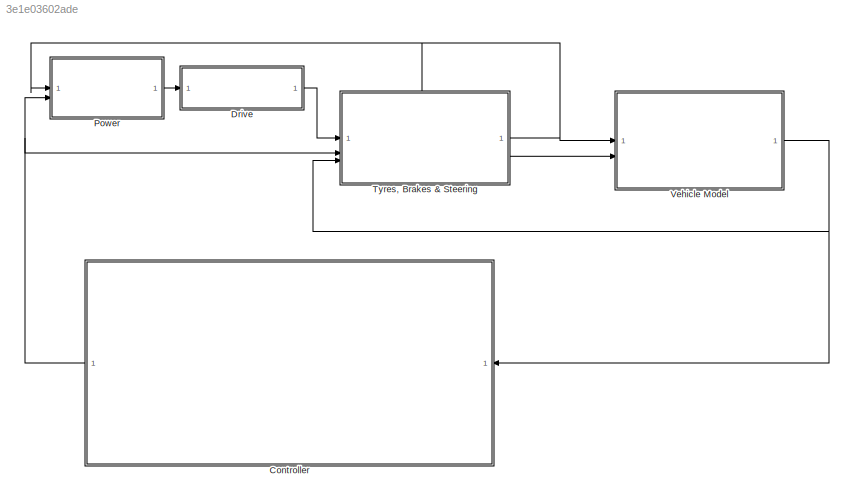
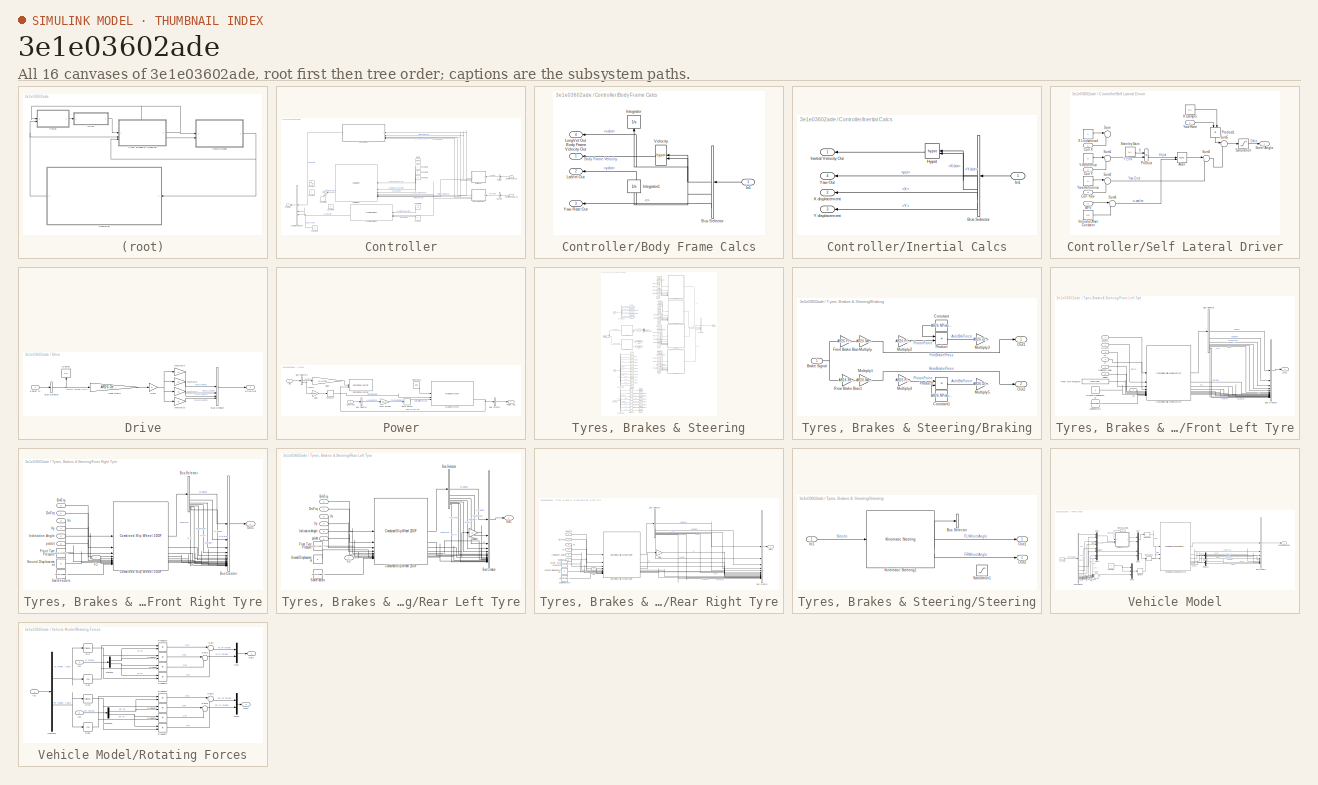
[diagram: thumbnail index - all 16 canvases of the model, root first then tree order]
MODEL slx_3e1e03602ade
KIND model
CONFIG AbsTol = auto
CONFIG EnableMultiTasking = off
CONFIG FixedStep = auto
CONFIG MaxStep = auto
CONFIG MinStep = auto
CONFIG RelTol = auto
CONFIG SampleTimeConstraint = Unconstrained
CONFIG SolverName = ode23t
CONFIG StartTime = 0.0
CONFIG StopTime = 100
BLOCK [SubSystem] Controller
BLOCK [BusSelector] Controller/BdyFrm
  NameLocation = top
  OutputSignals = Info.BdyFrm
BLOCK [SubSystem] Controller/Body Frame Calcs
  NameLocation = top
BLOCK [Outport] Controller/Body Frame Calcs/Body Frame Velocity Out
  NameLocation = top
BLOCK [BusSelector] Controller/Body Frame Calcs/Bus Selector
  NameLocation = top
  OutputSignals = Cg.Vel.xdot,Cg.Vel.ydot,FrntAxl.Steer.WhlAngFL,FrntAxl.Steer.WhlAngFR,Cg.Ang.Beta,Cg.AngVel.r,Cg.DCM
BLOCK [Inport] Controller/Body Frame Calcs/In1
  NameLocation = top
BLOCK [Integrator] Controller/Body Frame Calcs/Integrator
  NameLocation = right
BLOCK [Integrator] Controller/Body Frame Calcs/Integrator1
  NameLocation = left
BLOCK [Outport] Controller/Body Frame Calcs/LatVel Out
  Port = 2
BLOCK [Outport] Controller/Body Frame Calcs/LongVel Out
  NameLocation = top
  Port = 4
BLOCK [Math] Controller/Body Frame Calcs/Velocity
  NameLocation = top
  Operator = hypot
BLOCK [Outport] Controller/Body Frame Calcs/Yaw Rate Out
  NameLocation = top
  Port = 3
BLOCK [Constant] Controller/Constant
  NameLocation = top
  Value = 0
BLOCK [Constant] Controller/Constant1
  NameLocation = top
  Value = 0
BLOCK [Constant] Controller/Constant2
  NameLocation = top
  Value = 0
BLOCK [Constant] Controller/Constant3
  NameLocation = top
  Value = 0
BLOCK [Constant] Controller/Constant4
  NameLocation = top
  Value = 0
BLOCK [Constant] Controller/Constant5
  NameLocation = top
  Value = 0
BLOCK [Constant] Controller/Constant6
  NameLocation = top
  Value = 30
BLOCK [Constant] Controller/Constant7
  NameLocation = top
  Value = 0
BLOCK [BusCreator] Controller/Control Commands
  DisplayOption = bar
  InheritFromInputs = on
  Inputs = 3
  NameLocation = top
BLOCK [Inport] Controller/Control Feedback
BLOCK [InportShadow] Controller/Control Feedback2
BLOCK [Outport] Controller/Control Out
BLOCK [Gain] Controller/Gain
  Gain = pi/2
  NameLocation = top
BLOCK [BusSelector] Controller/InertFrm
  NameLocation = top
  OutputSignals = Info.InertFrm
BLOCK [SubSystem] Controller/Inertial Calcs
  NameLocation = top
BLOCK [BusSelector] Controller/Inertial Calcs/Bus Selector
  NameLocation = top
  OutputSignals = Cg.Vel.Xdot,Cg.Vel.Ydot,Cg.Ang.psi,Cg.Disp.X,Cg.Disp.Y
BLOCK [Math] Controller/Inertial Calcs/Hypot
  NameLocation = top
  Operator = hypot
BLOCK [Inport] Controller/Inertial Calcs/In1
  NameLocation = top
BLOCK [Outport] Controller/Inertial Calcs/Inertial Velocity Out
  NameLocation = top
BLOCK [Outport] Controller/Inertial Calcs/X displacement
  NameLocation = top
  Port = 2
BLOCK [Outport] Controller/Inertial Calcs/Y displacement
  NameLocation = top
  Port = 3
BLOCK [Outport] Controller/Inertial Calcs/Yaw Out
  NameLocation = top
  Port = 4
BLOCK [Reference] Controller/Lateral Driver  REF=vehdynlibdriver/Lateral Driver
  NameLocation = top
  SourceBlock = vehdynlibdriver/Lateral Driver
  SourceType = Lateral Driver
BLOCK [Reference] Controller/Longitudinal Driver  REF=autolibshared/Longitudinal Driver
  LibrarySourceBlock = vehdynlibdriver/Longitudinal Driver
  NameLocation = top
  SourceBlock = autolibshared/Longitudinal Driver
  SourceType = Longitudinal Driver
BLOCK [Reference] Controller/Ramp  REF=simulink/Sources/Ramp
  NameLocation = top
  SourceBlock = simulink/Sources/Ramp
  SourceType = Ramp
BLOCK [RateLimiter] Controller/Rate Limiter1
  NameLocation = top
  RisingSlewLimit = 0.5
  SampleTimeMode = inherited
BLOCK [SubSystem] Controller/Self Lateral Driver
  NameLocation = top
BLOCK [Trigonometry] Controller/Self Lateral Driver/Atan
  Operator = atan2
BLOCK [Inport] Controller/Self Lateral Driver/BFV
  NameLocation = left
  Port = 4
BLOCK [Inport] Controller/Self Lateral Driver/Curr X
  NameLocation = left
BLOCK [Inport] Controller/Self Lateral Driver/Curr Y
  NameLocation = left
  Port = 2
BLOCK [Inport] Controller/Self Lateral Driver/Curr Yaw
  NameLocation = left
  Port = 3
BLOCK [Constant] Controller/Self Lateral Driver/K Damper
  Value = 0.1
BLOCK [Product] Controller/Self Lateral Driver/Product
BLOCK [Product] Controller/Self Lateral Driver/Product1
  NameLocation = left
BLOCK [Saturate] Controller/Self Lateral Driver/Saturation
  LowerLimit = -1.6
  UpperLimit = 1.6
BLOCK [Constant] Controller/Self Lateral Driver/Stanley Gain
  NameLocation = left
  Value = 0.1
BLOCK [Outport] Controller/Self Lateral Driver/Steer Angle
BLOCK [Sum] Controller/Self Lateral Driver/Sum
  Inputs = |++
BLOCK [Sum] Controller/Self Lateral Driver/Sum1
  Inputs = |+-
BLOCK [Sum] Controller/Self Lateral Driver/Sum2
  Inputs = |+-
BLOCK [Sum] Controller/Self Lateral Driver/Sum3
  Inputs = |++
BLOCK [Sum] Controller/Self Lateral Driver/Sum4
  Inputs = |++
BLOCK [Sum] Controller/Self Lateral Driver/Sum5
  Inputs = |-+
BLOCK [Constant] Controller/Self Lateral Driver/Velocity Offset Constant
  Value = 0.5
BLOCK [Constant] Controller/Self Lateral Driver/X Lookahead
  NameLocation = left
BLOCK [Constant] Controller/Self Lateral Driver/Y-Reference
  NameLocation = left
  Value = 0
BLOCK [Inport] Controller/Self Lateral Driver/Yaw Rate
  Port = 5
BLOCK [Constant] Controller/Self Lateral Driver/Yaw-Reference
  NameLocation = left
  Value = 0
BLOCK [Sin] Controller/Sine Wave
  Amplitude = 1.6
  Frequency = 0.5
  NameLocation = top
  SampleTime = 0
BLOCK [SubSystem] Drive
BLOCK [BusCreator] Drive/Bus Creator
  DisplayOption = bar
  InheritFromInputs = on
  Inputs = 4
BLOCK [BusSelector] Drive/Bus Selector
  OutputSignals = Motor Torque (Nm)
BLOCK [Display] Drive/Display
  Decimation = 1
  NameLocation = right
BLOCK [Outport] Drive/Drive Out
BLOCK [Gain] Drive/Gain
BLOCK [Gain] Drive/Gear Ratio
  Gain = AR26.GearRatio
BLOCK [Gain] Drive/Multiply1
BLOCK [Gain] Drive/Multiply2
BLOCK [Gain] Drive/Multiply3
BLOCK [Gain] Drive/Multiply4
BLOCK [Inport] Drive/Power In
BLOCK [SubSystem] Power
BLOCK [BusCreator] Power/Bus Creator
  DisplayOption = bar
  InheritFromInputs = on
  Inputs = 1
BLOCK [BusSelector] Power/Bus Selector
  OutputSignals = Accel Control
BLOCK [BusSelector] Power/Bus Selector1
  OutputSignals = FL_Dyn.WhlTrq,FL_Dyn.omega
BLOCK [Constant] Power/Constant2
  Value = 588
BLOCK [Inport] Power/Control in
  Port = 2
BLOCK [Gain] Power/Gain
  Gain = 1/AR26.GearRatio
BLOCK [Gain] Power/Gain1
  Gain = 1/AR26.GearRatio
BLOCK [Reference] Power/Mapped Motor  REF=autolibmappedmotor/Mapped Motor
  LibrarySourceBlock = vdynlib/Powertrain/Propulsion/Mapped Motor
  SourceBlock = autolibmappedmotor/Mapped Motor
  SourceType = MappedMotor
BLOCK [Gain] Power/Max Torque
  Gain = 31.6
BLOCK [Memory] Power/Memory
BLOCK [Inport] Power/Old
  NameLocation = top
BLOCK [Outport] Power/Power Out
BLOCK [RateLimiter] Power/Rate Limiter
  FallingSlewLimit = -100
  RisingSlewLimit = 0.1
  SampleTimeMode = inherited
BLOCK [Reference] Power/Rotational Inertia  REF=autolibsharedcoupling/Rotational Inertia
  LibrarySourceBlock = vdynlib/Powertrain/Drivetrain/Couplings/Rotational Inertia
  SourceBlock = autolibsharedcoupling/Rotational Inertia
  SourceType = Rotational Inertia
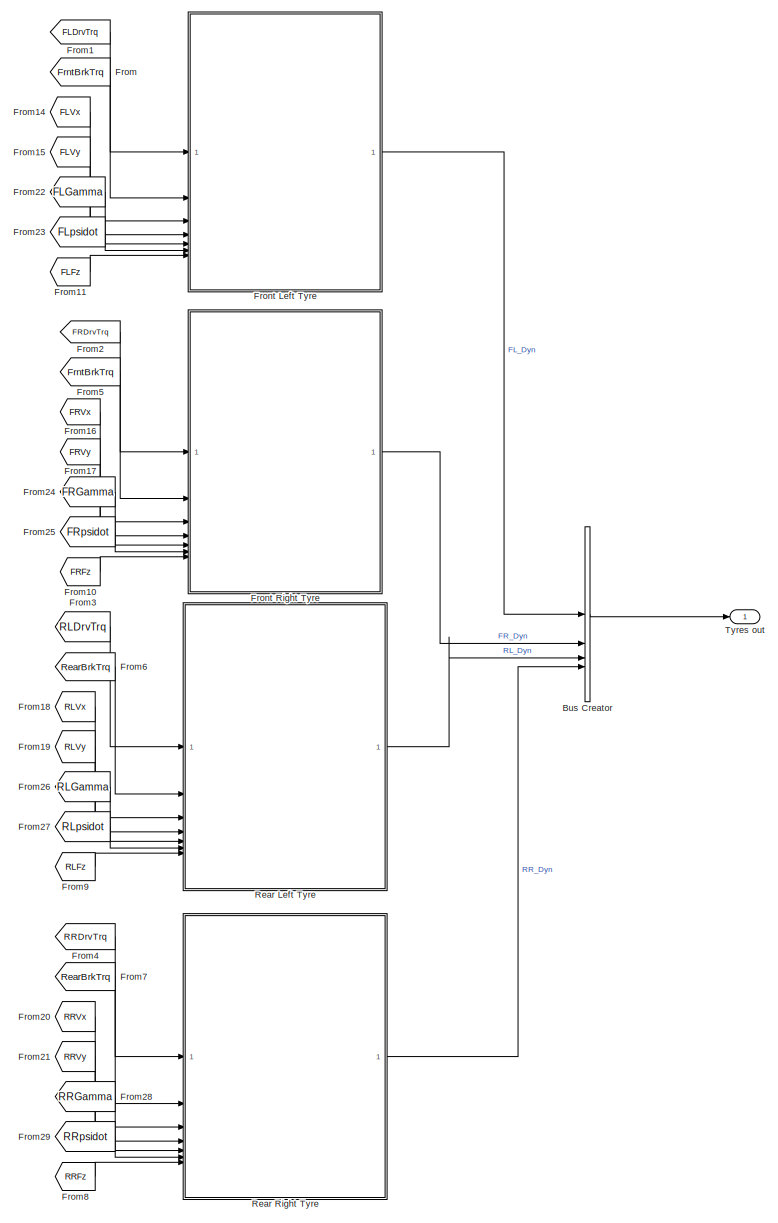
[diagram: Tyres, Brakes & Steering - part 1/2, middle right region]
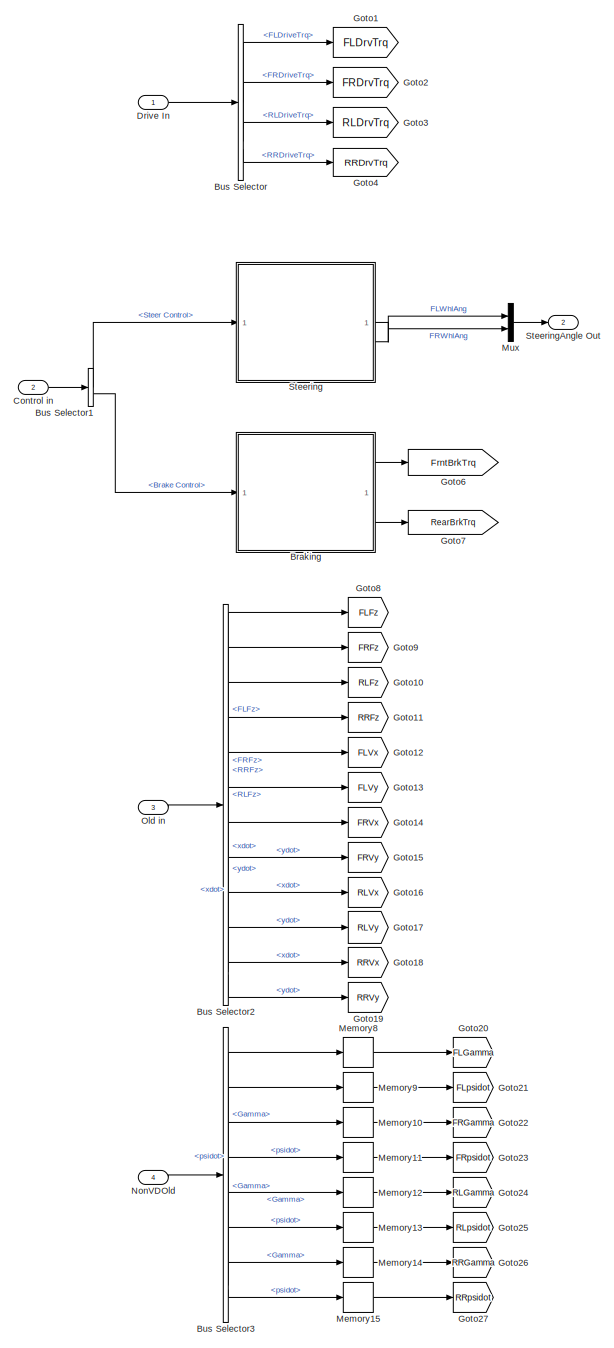
[diagram: Tyres, Brakes & Steering - part 2/2, left side, full height]
BLOCK [SubSystem] Tyres, Brakes & Steering
  PortSchema = {"entries":[{"content":{"sides":[{"content":{"connectorIds":["In1","In2","In3"]},"type":"ConnectorPlacement.EquallySpacedRectSide","uuid":"2d0cea8b-83c5-43d0-a9da-df7959890b84"},{"content":{"connectorIds":["Out1","Out2"],"side":"RIGHT"},"type":"ConnectorPlacement.EquallySpacedRectSide","uuid":"18a5ce0c-4f74-4e1c-9a31-f96c275e466d"},{"content":{"connectorIds":["In4"],"side":"TOP"},"type":"Connector...<+264ch>
BLOCK [SubSystem] Tyres, Brakes & Steering/Braking
BLOCK [Inport] Tyres, Brakes & Steering/Braking/Brake Signal
BLOCK [Constant] Tyres, Brakes & Steering/Braking/Constant
  NameLocation = top
  Value = AR26.NPistonAxle
BLOCK [Constant] Tyres, Brakes & Steering/Braking/Constant1
  NameLocation = top
  Value = AR26.NPistonAxle
BLOCK [Gain] Tyres, Brakes & Steering/Braking/Front Brake Bias
  Gain = AR26.FrntBrkBias
  NameLocation = top
BLOCK [Gain] Tyres, Brakes & Steering/Braking/Multiply
  Gain = AR26.MaxBrakePressure
BLOCK [Gain] Tyres, Brakes & Steering/Braking/Multiply1
  Gain = AR26.MaxBrakePressure
BLOCK [Gain] Tyres, Brakes & Steering/Braking/Multiply2
  Gain = AR26.PistonArea
BLOCK [Gain] Tyres, Brakes & Steering/Braking/Multiply3
  Gain = AR26.DiscRadius
BLOCK [Gain] Tyres, Brakes & Steering/Braking/Multiply4
  Gain = AR26.PistonArea
BLOCK [Gain] Tyres, Brakes & Steering/Braking/Multiply5
  Gain = AR26.DiscRadius
BLOCK [Outport] Tyres, Brakes & Steering/Braking/Out1
BLOCK [Outport] Tyres, Brakes & Steering/Braking/Out2
  Port = 2
BLOCK [Product] Tyres, Brakes & Steering/Braking/Product
BLOCK [Product] Tyres, Brakes & Steering/Braking/Product1
BLOCK [Gain] Tyres, Brakes & Steering/Braking/Rear Brake Bias1
  Gain = AR26.RearBrkBias
BLOCK [BusCreator] Tyres, Brakes & Steering/Bus Creator
  DisplayOption = bar
  InheritFromInputs = on
  Inputs = 4
BLOCK [BusSelector] Tyres, Brakes & Steering/Bus Selector
  OutputSignals = FLDriveTrq,FRDriveTrq,RLDriveTrq,RRDriveTrq
BLOCK [BusSelector] Tyres, Brakes & Steering/Bus Selector1
  OutputSignals = Steer Control,Brake Control
BLOCK [BusSelector] Tyres, Brakes & Steering/Bus Selector2
  OutputSignals = FLFz,FRFz,RLFz,RRFz,Info.BdyFrm.FrntAxl.Lft.Vel.xdot,Info.BdyFrm.FrntAxl.Lft.Vel.ydot,Info.BdyFrm.FrntAxl.Rght.Vel.xdot,Info.BdyFrm.FrntAxl.Rght.Vel.ydot,Info.BdyFrm.RearAxl.Lft.Vel.xdot,Info.BdyFrm.RearAxl.Lft.Vel.ydot,Info.BdyFrm.RearAxl.Rght.Vel.xdot,Info.BdyFrm.RearAxl.Rght.Vel.ydot
BLOCK [BusSelector] Tyres, Brakes & Steering/Bus Selector3
  OutputSignals = FL_Dyn.Gamma,FL_Dyn.psidot,FR_Dyn.Gamma,FR_Dyn.psidot,RL_Dyn.Gamma,RL_Dyn.psidot,RR_Dyn.Gamma,RR_Dyn.psidot
BLOCK [Inport] Tyres, Brakes & Steering/Control in
  Port = 2
BLOCK [Inport] Tyres, Brakes & Steering/Drive In
BLOCK [From] Tyres, Brakes & Steering/From
  GotoTag = FrntBrkTrq
BLOCK [From] Tyres, Brakes & Steering/From1
  GotoTag = FLDrvTrq
BLOCK [From] Tyres, Brakes & Steering/From10
  GotoTag = FRFz
BLOCK [From] Tyres, Brakes & Steering/From11
  GotoTag = FLFz
BLOCK [From] Tyres, Brakes & Steering/From14
  GotoTag = FLVx
BLOCK [From] Tyres, Brakes & Steering/From15
  GotoTag = FLVy
BLOCK [From] Tyres, Brakes & Steering/From16
  GotoTag = FRVx
BLOCK [From] Tyres, Brakes & Steering/From17
  GotoTag = FRVy
BLOCK [From] Tyres, Brakes & Steering/From18
  GotoTag = RLVx
BLOCK [From] Tyres, Brakes & Steering/From19
  GotoTag = RLVy
BLOCK [From] Tyres, Brakes & Steering/From2
  GotoTag = FRDrvTrq
BLOCK [From] Tyres, Brakes & Steering/From20
  GotoTag = RRVx
BLOCK [From] Tyres, Brakes & Steering/From21
  GotoTag = RRVy
BLOCK [From] Tyres, Brakes & Steering/From22
  GotoTag = FLGamma
BLOCK [From] Tyres, Brakes & Steering/From23
  GotoTag = FLpsidot
BLOCK [From] Tyres, Brakes & Steering/From24
  GotoTag = FRGamma
BLOCK [From] Tyres, Brakes & Steering/From25
  GotoTag = FRpsidot
BLOCK [From] Tyres, Brakes & Steering/From26
  GotoTag = RLGamma
BLOCK [From] Tyres, Brakes & Steering/From27
  GotoTag = RLpsidot
BLOCK [From] Tyres, Brakes & Steering/From28
  GotoTag = RRGamma
BLOCK [From] Tyres, Brakes & Steering/From29
  GotoTag = RRpsidot
BLOCK [From] Tyres, Brakes & Steering/From3
  GotoTag = RLDrvTrq
BLOCK [From] Tyres, Brakes & Steering/From4
  GotoTag = RRDrvTrq
BLOCK [From] Tyres, Brakes & Steering/From5
  GotoTag = FrntBrkTrq
BLOCK [From] Tyres, Brakes & Steering/From6
  GotoTag = RearBrkTrq
BLOCK [From] Tyres, Brakes & Steering/From7
  GotoTag = RearBrkTrq
BLOCK [From] Tyres, Brakes & Steering/From8
  GotoTag = RRFz
BLOCK [From] Tyres, Brakes & Steering/From9
  GotoTag = RLFz
BLOCK [SubSystem] Tyres, Brakes & Steering/Front Left Tyre
BLOCK [Inport] Tyres, Brakes & Steering/Front Left Tyre/BrkTrq
  NameLocation = left
  Port = 2
BLOCK [BusCreator] Tyres, Brakes & Steering/Front Left Tyre/Bus Creator
  DisplayOption = bar
  InheritFromInputs = on
  Inputs = 15
BLOCK [BusSelector] Tyres, Brakes & Steering/Front Left Tyre/Bus Selector
  OutputSignals = Alpha,Kappa,Gamma,psidot,Vx,Vy,AxlTrq,WhlTrq
BLOCK [Reference] Tyres, Brakes & Steering/Front Left Tyre/Combined Slip Wheel 2DOF  REF=vehdynlibtire/Combined Slip Wheel 2DOF
  SourceBlock = vehdynlibtire/Combined Slip Wheel 2DOF
  SourceType = Combined Slip Wheel 2DOF
BLOCK [Inport] Tyres, Brakes & Steering/Front Left Tyre/DrvTrq
  NameLocation = left
BLOCK [Constant] Tyres, Brakes & Steering/Front Left Tyre/Front Tyre Pressure
  NameLocation = left
  Value = AR26.FrontPressure
BLOCK [Inport] Tyres, Brakes & Steering/Front Left Tyre/Fz
  Port = 7
BLOCK [Constant] Tyres, Brakes & Steering/Front Left Tyre/Ground Displacement
  NameLocation = left
  Value = 0
BLOCK [Inport] Tyres, Brakes & Steering/Front Left Tyre/Inclination Angle
  NameLocation = left
  Port = 5
BLOCK [Outport] Tyres, Brakes & Steering/Front Left Tyre/Out1
BLOCK [Constant] Tyres, Brakes & Steering/Front Left Tyre/ScaleFactors
  NameLocation = left
  Value = AR26.ScaleFctrs
BLOCK [Inport] Tyres, Brakes & Steering/Front Left Tyre/Vx
  NameLocation = left
  Port = 3
BLOCK [Inport] Tyres, Brakes & Steering/Front Left Tyre/Vy
  NameLocation = left
  Port = 4
BLOCK [Inport] Tyres, Brakes & Steering/Front Left Tyre/psidot
  NameLocation = left
  Port = 6
BLOCK [SubSystem] Tyres, Brakes & Steering/Front Right Tyre
BLOCK [Inport] Tyres, Brakes & Steering/Front Right Tyre/BrkTrq
  NameLocation = left
  Port = 2
BLOCK [BusCreator] Tyres, Brakes & Steering/Front Right Tyre/Bus Creator
  DisplayOption = bar
  InheritFromInputs = on
  Inputs = 15
BLOCK [BusSelector] Tyres, Brakes & Steering/Front Right Tyre/Bus Selector
  OutputSignals = Kappa,Alpha,Gamma,psidot,Vx,Vy,AxlTrq,WhlTrq
BLOCK [Reference] Tyres, Brakes & Steering/Front Right Tyre/Combined Slip Wheel 2DOF  REF=vehdynlibtire/Combined Slip Wheel 2DOF
  SourceBlock = vehdynlibtire/Combined Slip Wheel 2DOF
  SourceType = Combined Slip Wheel 2DOF
BLOCK [Inport] Tyres, Brakes & Steering/Front Right Tyre/DrvTrq
  NameLocation = left
BLOCK [Constant] Tyres, Brakes & Steering/Front Right Tyre/Front Tyre Pressure
  NameLocation = left
  Value = AR26.FrontPressure
BLOCK [Inport] Tyres, Brakes & Steering/Front Right Tyre/Fz
  Port = 7
BLOCK [Constant] Tyres, Brakes & Steering/Front Right Tyre/Ground Displacement
  NameLocation = left
  Value = 0
BLOCK [Inport] Tyres, Brakes & Steering/Front Right Tyre/Inclination Angle
  NameLocation = left
  Port = 5
BLOCK [Outport] Tyres, Brakes & Steering/Front Right Tyre/Out1
BLOCK [Constant] Tyres, Brakes & Steering/Front Right Tyre/ScaleFactors
  NameLocation = left
  Value = AR26.ScaleFctrs
BLOCK [Inport] Tyres, Brakes & Steering/Front Right Tyre/Vx
  NameLocation = left
  Port = 3
BLOCK [Inport] Tyres, Brakes & Steering/Front Right Tyre/Vy
  NameLocation = left
  Port = 4
BLOCK [Inport] Tyres, Brakes & Steering/Front Right Tyre/psidot
  NameLocation = left
  Port = 6
BLOCK [Goto] Tyres, Brakes & Steering/Goto1
  GotoTag = FLDrvTrq
BLOCK [Goto] Tyres, Brakes & Steering/Goto10
  GotoTag = RLFz
BLOCK [Goto] Tyres, Brakes & Steering/Goto11
  GotoTag = RRFz
BLOCK [Goto] Tyres, Brakes & Steering/Goto12
  GotoTag = FLVx
BLOCK [Goto] Tyres, Brakes & Steering/Goto13
  GotoTag = FLVy
BLOCK [Goto] Tyres, Brakes & Steering/Goto14
  GotoTag = FRVx
BLOCK [Goto] Tyres, Brakes & Steering/Goto15
  GotoTag = FRVy
BLOCK [Goto] Tyres, Brakes & Steering/Goto16
  GotoTag = RLVx
BLOCK [Goto] Tyres, Brakes & Steering/Goto17
  GotoTag = RLVy
BLOCK [Goto] Tyres, Brakes & Steering/Goto18
  GotoTag = RRVx
BLOCK [Goto] Tyres, Brakes & Steering/Goto19
  GotoTag = RRVy
BLOCK [Goto] Tyres, Brakes & Steering/Goto2
  GotoTag = FRDrvTrq
BLOCK [Goto] Tyres, Brakes & Steering/Goto20
  GotoTag = FLGamma
BLOCK [Goto] Tyres, Brakes & Steering/Goto21
  GotoTag = FLpsidot
BLOCK [Goto] Tyres, Brakes & Steering/Goto22
  GotoTag = FRGamma
BLOCK [Goto] Tyres, Brakes & Steering/Goto23
  GotoTag = FRpsidot
BLOCK [Goto] Tyres, Brakes & Steering/Goto24
  GotoTag = RLGamma
BLOCK [Goto] Tyres, Brakes & Steering/Goto25
  GotoTag = RLpsidot
BLOCK [Goto] Tyres, Brakes & Steering/Goto26
  GotoTag = RRGamma
BLOCK [Goto] Tyres, Brakes & Steering/Goto27
  GotoTag = RRpsidot
BLOCK [Goto] Tyres, Brakes & Steering/Goto3
  GotoTag = RLDrvTrq
BLOCK [Goto] Tyres, Brakes & Steering/Goto4
  GotoTag = RRDrvTrq
BLOCK [Goto] Tyres, Brakes & Steering/Goto6
  GotoTag = FrntBrkTrq
  IconDisplay = Signal name
BLOCK [Goto] Tyres, Brakes & Steering/Goto7
  GotoTag = RearBrkTrq
BLOCK [Goto] Tyres, Brakes & Steering/Goto8
  GotoTag = FLFz
BLOCK [Goto] Tyres, Brakes & Steering/Goto9
  GotoTag = FRFz
BLOCK [Memory] Tyres, Brakes & Steering/Memory10
BLOCK [Memory] Tyres, Brakes & Steering/Memory11
BLOCK [Memory] Tyres, Brakes & Steering/Memory12
BLOCK [Memory] Tyres, Brakes & Steering/Memory13
BLOCK [Memory] Tyres, Brakes & Steering/Memory14
BLOCK [Memory] Tyres, Brakes & Steering/Memory15
BLOCK [Memory] Tyres, Brakes & Steering/Memory8
BLOCK [Memory] Tyres, Brakes & Steering/Memory9
BLOCK [Mux] Tyres, Brakes & Steering/Mux
  DisplayOption = bar
  Inputs = 2
BLOCK [Inport] Tyres, Brakes & Steering/NonVDOld
  Port = 4
BLOCK [Inport] Tyres, Brakes & Steering/Old in
  Port = 3
BLOCK [SubSystem] Tyres, Brakes & Steering/Rear Left Tyre
BLOCK [Inport] Tyres, Brakes & Steering/Rear Left Tyre/BrkTrq
  NameLocation = top
  Port = 2
BLOCK [BusCreator] Tyres, Brakes & Steering/Rear Left Tyre/Bus Creator
  DisplayOption = bar
  InheritFromInputs = on
  Inputs = 15
BLOCK [BusSelector] Tyres, Brakes & Steering/Rear Left Tyre/Bus Selector
  OutputSignals = Kappa,Alpha,Gamma,psidot,Vx,Vy,AxlTrq,WhlTrq
BLOCK [Reference] Tyres, Brakes & Steering/Rear Left Tyre/Combined Slip Wheel 2DOF  REF=vehdynlibtire/Combined Slip Wheel 2DOF
  SourceBlock = vehdynlibtire/Combined Slip Wheel 2DOF
  SourceType = Combined Slip Wheel 2DOF
BLOCK [Inport] Tyres, Brakes & Steering/Rear Left Tyre/DrvTrq
  NameLocation = left
BLOCK [Constant] Tyres, Brakes & Steering/Rear Left Tyre/Front Tyre Pressure
  NameLocation = left
  Value = AR26.RearPressure
BLOCK [Inport] Tyres, Brakes & Steering/Rear Left Tyre/Fz
  Port = 7
BLOCK [Gain] Tyres, Brakes & Steering/Rear Left Tyre/Gain
BLOCK [Constant] Tyres, Brakes & Steering/Rear Left Tyre/Ground Displacement
  NameLocation = left
  Value = 0
BLOCK [Inport] Tyres, Brakes & Steering/Rear Left Tyre/Inclination Angle
  NameLocation = left
  Port = 5
BLOCK [Outport] Tyres, Brakes & Steering/Rear Left Tyre/Out1
BLOCK [Constant] Tyres, Brakes & Steering/Rear Left Tyre/ScaleFactors
  NameLocation = left
  Value = AR26.ScaleFctrs
BLOCK [Inport] Tyres, Brakes & Steering/Rear Left Tyre/Vx
  NameLocation = left
  Port = 3
BLOCK [Inport] Tyres, Brakes & Steering/Rear Left Tyre/Vy
  NameLocation = left
  Port = 4
BLOCK [Inport] Tyres, Brakes & Steering/Rear Left Tyre/psidot
  NameLocation = left
  Port = 6
BLOCK [SubSystem] Tyres, Brakes & Steering/Rear Right Tyre
BLOCK [Inport] Tyres, Brakes & Steering/Rear Right Tyre/BrkTrq
  NameLocation = left
  Port = 2
BLOCK [BusCreator] Tyres, Brakes & Steering/Rear Right Tyre/Bus Creator
  DisplayOption = bar
  InheritFromInputs = on
  Inputs = 15
BLOCK [BusSelector] Tyres, Brakes & Steering/Rear Right Tyre/Bus Selector
  OutputSignals = Kappa,Alpha,Gamma,psidot,Vx,Vy,AxlTrq,WhlTrq
BLOCK [Reference] Tyres, Brakes & Steering/Rear Right Tyre/Combined Slip Wheel 2DOF  REF=vehdynlibtire/Combined Slip Wheel 2DOF
  SourceBlock = vehdynlibtire/Combined Slip Wheel 2DOF
  SourceType = Combined Slip Wheel 2DOF
BLOCK [Inport] Tyres, Brakes & Steering/Rear Right Tyre/DrvTrq
  NameLocation = left
BLOCK [Constant] Tyres, Brakes & Steering/Rear Right Tyre/Front Tyre Pressure
  NameLocation = left
  Value = AR26.RearPressure
BLOCK [Inport] Tyres, Brakes & Steering/Rear Right Tyre/Fz
  NameLocation = left
  Port = 7
BLOCK [Gain] Tyres, Brakes & Steering/Rear Right Tyre/Gain
BLOCK [Constant] Tyres, Brakes & Steering/Rear Right Tyre/Ground Displacement
  NameLocation = left
  Value = 0
BLOCK [Inport] Tyres, Brakes & Steering/Rear Right Tyre/Inclination Angle
  NameLocation = left
  Port = 5
BLOCK [Outport] Tyres, Brakes & Steering/Rear Right Tyre/Out1
BLOCK [Constant] Tyres, Brakes & Steering/Rear Right Tyre/ScaleFactors
  NameLocation = left
  Value = AR26.ScaleFctrs
BLOCK [Inport] Tyres, Brakes & Steering/Rear Right Tyre/Vx
  NameLocation = left
  Port = 3
BLOCK [Inport] Tyres, Brakes & Steering/Rear Right Tyre/Vy
  NameLocation = left
  Port = 4
BLOCK [Inport] Tyres, Brakes & Steering/Rear Right Tyre/YawRate
  NameLocation = left
  Port = 6
BLOCK [SubSystem] Tyres, Brakes & Steering/Steering
BLOCK [BusSelector] Tyres, Brakes & Steering/Steering/Bus Selector
  OutputSignals = InstStrgRatio
BLOCK [Inport] Tyres, Brakes & Steering/Steering/In1
BLOCK [Reference] Tyres, Brakes & Steering/Steering/Kinematic Steering1  REF=vehdynlibsteering/Kinematic Steering
  SourceBlock = vehdynlibsteering/Kinematic Steering
  SourceType = Kinematic Steering
BLOCK [Outport] Tyres, Brakes & Steering/Steering/Out1
BLOCK [Outport] Tyres, Brakes & Steering/Steering/Out2
  Port = 2
BLOCK [Saturate] Tyres, Brakes & Steering/Steering/Saturation1
  LowerLimit = -0.61
  UpperLimit = 0.61
BLOCK [Outport] Tyres, Brakes & Steering/SteeringAngle Out
  Port = 2
BLOCK [Outport] Tyres, Brakes & Steering/Tyres out
BLOCK [SubSystem] Vehicle Model
BLOCK [BusCreator] Vehicle Model/Bus Creator2
  DisplayOption = bar
  InheritFromInputs = on
  Inputs = 9
BLOCK [BusSelector] Vehicle Model/Bus Selector
  OutputSignals = FL_Dyn.Fx,FL_Dyn.Fy,FR_Dyn.Fx,FR_Dyn.Fy,RL_Dyn.Fx,RL_Dyn.Fy,RR_Dyn.Fx,RR_Dyn.Fy,FL_Dyn.Mz,FR_Dyn.Mz,RL_Dyn.Mz,RR_Dyn.Mz
BLOCK [Constant] Vehicle Model/Constant
  Value = 0
BLOCK [Demux] Vehicle Model/Demux
  Outputs = 2
BLOCK [Demux] Vehicle Model/Demux1
  Outputs = 2
BLOCK [Memory] Vehicle Model/Memory
BLOCK [Mux] Vehicle Model/Mux
  DisplayOption = bar
  Inputs = 2
BLOCK [Mux] Vehicle Model/Mux1
  DisplayOption = bar
  Inputs = 2
BLOCK [Mux] Vehicle Model/Mux2
  DisplayOption = bar
  Inputs = 2
BLOCK [Mux] Vehicle Model/Mux3
  DisplayOption = bar
  Inputs = 2
BLOCK [Mux] Vehicle Model/Mux4
  DisplayOption = bar
  Inputs = 2
BLOCK [Mux] Vehicle Model/Mux5
  DisplayOption = bar
  Inputs = 2
BLOCK [Mux] Vehicle Model/Mux6
  DisplayOption = bar
  Inputs = 3
BLOCK [Reshape] Vehicle Model/Reshape
  OutputDimensionality = Customize
  OutputDimensions = [2,2]
BLOCK [Reshape] Vehicle Model/Reshape1
  OutputDimensionality = Customize
  OutputDimensions = [2,2]
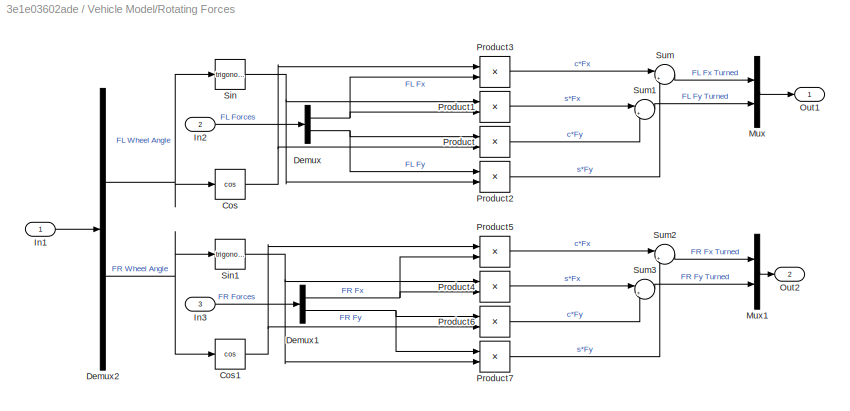
BLOCK [SubSystem] Vehicle Model/Rotating Forces
BLOCK [Trigonometry] Vehicle Model/Rotating Forces/Cos
  Operator = cos
BLOCK [Trigonometry] Vehicle Model/Rotating Forces/Cos1
  Operator = cos
BLOCK [Demux] Vehicle Model/Rotating Forces/Demux
  Outputs = 2
BLOCK [Demux] Vehicle Model/Rotating Forces/Demux1
  Outputs = 2
BLOCK [Demux] Vehicle Model/Rotating Forces/Demux2
  Outputs = 2
BLOCK [Inport] Vehicle Model/Rotating Forces/In1
BLOCK [Inport] Vehicle Model/Rotating Forces/In2
  Port = 2
BLOCK [Inport] Vehicle Model/Rotating Forces/In3
  Port = 3
BLOCK [Mux] Vehicle Model/Rotating Forces/Mux
  DisplayOption = bar
  Inputs = 2
BLOCK [Mux] Vehicle Model/Rotating Forces/Mux1
  DisplayOption = bar
  Inputs = 2
BLOCK [Outport] Vehicle Model/Rotating Forces/Out1
BLOCK [Outport] Vehicle Model/Rotating Forces/Out2
  Port = 2
BLOCK [Product] Vehicle Model/Rotating Forces/Product
BLOCK [Product] Vehicle Model/Rotating Forces/Product1
BLOCK [Product] Vehicle Model/Rotating Forces/Product2
BLOCK [Product] Vehicle Model/Rotating Forces/Product3
BLOCK [Product] Vehicle Model/Rotating Forces/Product4
BLOCK [Product] Vehicle Model/Rotating Forces/Product5
BLOCK [Product] Vehicle Model/Rotating Forces/Product6
BLOCK [Product] Vehicle Model/Rotating Forces/Product7
BLOCK [Trigonometry] Vehicle Model/Rotating Forces/Sin
BLOCK [Trigonometry] Vehicle Model/Rotating Forces/Sin1
BLOCK [Sum] Vehicle Model/Rotating Forces/Sum
  Inputs = |+-
BLOCK [Sum] Vehicle Model/Rotating Forces/Sum1
  Inputs = |++
BLOCK [Sum] Vehicle Model/Rotating Forces/Sum2
  Inputs = |+-
BLOCK [Sum] Vehicle Model/Rotating Forces/Sum3
  Inputs = |++
BLOCK [Inport] Vehicle Model/SteeringAngle In
  NameLocation = top
  Port = 2
BLOCK [Sum] Vehicle Model/Sum
  Inputs = |++++
BLOCK [Inport] Vehicle Model/Tyres In
BLOCK [Reference] Vehicle Model/Vehicle Body 3DOF Dual Track  REF=autolibshared/Vehicle Body 3DOF Single Track
  LibrarySourceBlock = vehdynlibeom/Vehicle Body 3DOF Dual Track
  SourceBlock = autolibshared/Vehicle Body 3DOF Single Track
  SourceType = Vehicle Body 3DOF Lateral
BLOCK [Outport] Vehicle Model/Vehicle Model Out
LINE Controller/BdyFrm:1 -> Controller/Body Frame Calcs:1
NET Controller/Body Frame Calcs/Bus Selector:1 -> Controller/Body Frame Calcs/Integrator:1, Controller/Body Frame Calcs/LongVel Out:1, Controller/Body Frame Calcs/Velocity:1
NET Controller/Body Frame Calcs/Bus Selector:2 -> Controller/Body Frame Calcs/Integrator1:1, Controller/Body Frame Calcs/LatVel Out:1, Controller/Body Frame Calcs/Velocity:2
LINE Controller/Body Frame Calcs/Bus Selector:6 -> Controller/Body Frame Calcs/Yaw Rate Out:1
LINE Controller/Body Frame Calcs/In1:1 -> Controller/Body Frame Calcs/Bus Selector:1
LINE Controller/Body Frame Calcs/Velocity:1 -> Controller/Body Frame Calcs/Body Frame Velocity Out:1
LINE Controller/Body Frame Calcs:1 -> Controller/Self Lateral Driver:4
LINE Controller/Body Frame Calcs:3 -> Controller/Self Lateral Driver:5
NET Controller/Body Frame Calcs:4 -> Controller/Lateral Driver:4, Controller/Longitudinal Driver:2
LINE Controller/Constant1:1 -> Controller/Lateral Driver:3
LINE Controller/Constant2:1 -> Controller/Lateral Driver:1
LINE Controller/Constant5:1 -> Controller/Lateral Driver:2
LINE Controller/Constant6:1 -> Controller/Longitudinal Driver:1
LINE Controller/Constant7:1 -> Controller/Control Commands:3
LINE Controller/Constant:1 -> Controller/Longitudinal Driver:3
LINE Controller/Control Commands:1 -> Controller/Control Out:1
LINE Controller/Control Feedback2:1 -> Controller/BdyFrm:1
LINE Controller/Control Feedback:1 -> Controller/InertFrm:1
LINE Controller/InertFrm:1 -> Controller/Inertial Calcs:1
LINE Controller/Inertial Calcs/Bus Selector:1 -> Controller/Inertial Calcs/Hypot:1
LINE Controller/Inertial Calcs/Bus Selector:2 -> Controller/Inertial Calcs/Hypot:2
LINE Controller/Inertial Calcs/Bus Selector:3 -> Controller/Inertial Calcs/Yaw Out:1
LINE Controller/Inertial Calcs/Bus Selector:4 -> Controller/Inertial Calcs/X displacement:1
LINE Controller/Inertial Calcs/Bus Selector:5 -> Controller/Inertial Calcs/Y displacement:1
LINE Controller/Inertial Calcs/Hypot:1 -> Controller/Inertial Calcs/Inertial Velocity Out:1
LINE Controller/Inertial Calcs/In1:1 -> Controller/Inertial Calcs/Bus Selector:1
NET Controller/Inertial Calcs:2 -> Controller/Lateral Driver:5, Controller/Self Lateral Driver:1
NET Controller/Inertial Calcs:3 -> Controller/Lateral Driver:6, Controller/Self Lateral Driver:2
NET Controller/Inertial Calcs:4 -> Controller/Lateral Driver:7, Controller/Self Lateral Driver:3
LINE Controller/Lateral Driver:2 -> Controller/Gain:1
LINE Controller/Longitudinal Driver:2 -> Controller/Control Commands:2
LINE Controller/Self Lateral Driver/Atan:1 -> Controller/Self Lateral Driver/Sum3:1
LINE Controller/Self Lateral Driver/BFV:1 -> Controller/Self Lateral Driver/Sum4:1
LINE Controller/Self Lateral Driver/Curr X:1 -> Controller/Self Lateral Driver/Sum:2
LINE Controller/Self Lateral Driver/Curr Y:1 -> Controller/Self Lateral Driver/Sum1:2
LINE Controller/Self Lateral Driver/Curr Yaw:1 -> Controller/Self Lateral Driver/Sum2:2
LINE Controller/Self Lateral Driver/K Damper:1 -> Controller/Self Lateral Driver/Product1:2
LINE Controller/Self Lateral Driver/Product1:1 -> Controller/Self Lateral Driver/Sum5:1
LINE Controller/Self Lateral Driver/Product:1 -> Controller/Self Lateral Driver/Atan:1
LINE Controller/Self Lateral Driver/Saturation:1 -> Controller/Self Lateral Driver/Steer Angle:1
LINE Controller/Self Lateral Driver/Stanley Gain:1 -> Controller/Self Lateral Driver/Product:1
LINE Controller/Self Lateral Driver/Sum1:1 -> Controller/Self Lateral Driver/Product:2
LINE Controller/Self Lateral Driver/Sum2:1 -> Controller/Self Lateral Driver/Sum3:2
LINE Controller/Self Lateral Driver/Sum3:1 -> Controller/Self Lateral Driver/Sum5:2
LINE Controller/Self Lateral Driver/Sum4:1 -> Controller/Self Lateral Driver/Atan:2
LINE Controller/Self Lateral Driver/Sum5:1 -> Controller/Self Lateral Driver/Saturation:1
LINE Controller/Self Lateral Driver/Velocity Offset Constant:1 -> Controller/Self Lateral Driver/Sum4:2
LINE Controller/Self Lateral Driver/X Lookahead:1 -> Controller/Self Lateral Driver/Sum:1
LINE Controller/Self Lateral Driver/Y-Reference:1 -> Controller/Self Lateral Driver/Sum1:1
LINE Controller/Self Lateral Driver/Yaw Rate:1 -> Controller/Self Lateral Driver/Product1:1
LINE Controller/Self Lateral Driver/Yaw-Reference:1 -> Controller/Self Lateral Driver/Sum2:1
LINE Controller/Self Lateral Driver:1 -> Controller/Control Commands:1
NET Controller:1 -> Power:2, Tyres, Brakes & Steering:2
LINE Drive/Bus Creator:1 -> Drive/Drive Out:1
NET Drive/Bus Selector:1 -> Drive/Display:1, Drive/Gear Ratio:1
NET Drive/Gain:1 -> Drive/Multiply1:1, Drive/Multiply2:1, Drive/Multiply3:1, Drive/Multiply4:1
LINE Drive/Gear Ratio:1 -> Drive/Gain:1
LINE Drive/Multiply1:1 -> Drive/Bus Creator:2
LINE Drive/Multiply2:1 -> Drive/Bus Creator:3
LINE Drive/Multiply3:1 -> Drive/Bus Creator:4
LINE Drive/Multiply4:1 -> Drive/Bus Creator:1
LINE Drive/Power In:1 -> Drive/Bus Selector:1
LINE Drive:1 -> Tyres, Brakes & Steering:1
LINE Power/Bus Creator:1 -> Power/Power Out:1
LINE Power/Bus Selector1:1 -> Power/Gain1:1
LINE Power/Bus Selector1:2 -> Power/Gain:1
LINE Power/Bus Selector:1 -> Power/Max Torque:1
LINE Power/Constant2:1 -> Power/Mapped Motor:1
LINE Power/Control in:1 -> Power/Bus Selector:1
LINE Power/Gain1:1 -> Power/Rotational Inertia:1
LINE Power/Gain:1 -> Power/Memory:1
NET Power/Mapped Motor:3 -> Power/Bus Creator:1, Power/Rotational Inertia:2
LINE Power/Max Torque:1 -> Power/Rate Limiter:1
LINE Power/Memory:1 -> Power/Mapped Motor:2
LINE Power/Old:1 -> Power/Bus Selector1:1
LINE Power/Rate Limiter:1 -> Power/Mapped Motor:3
LINE Power:1 -> Drive:1
NET Tyres, Brakes & Steering/Braking/Brake Signal:1 -> Tyres, Brakes & Steering/Braking/Front Brake Bias:1, Tyres, Brakes & Steering/Braking/Rear Brake Bias1:1
LINE Tyres, Brakes & Steering/Braking/Constant1:1 -> Tyres, Brakes & Steering/Braking/Product1:2
LINE Tyres, Brakes & Steering/Braking/Constant:1 -> Tyres, Brakes & Steering/Braking/Product:1
LINE Tyres, Brakes & Steering/Braking/Front Brake Bias:1 -> Tyres, Brakes & Steering/Braking/Multiply:1
LINE Tyres, Brakes & Steering/Braking/Multiply1:1 -> Tyres, Brakes & Steering/Braking/Out2:1
LINE Tyres, Brakes & Steering/Braking/Multiply2:1 -> Tyres, Brakes & Steering/Braking/Product:2
LINE Tyres, Brakes & Steering/Braking/Multiply4:1 -> Tyres, Brakes & Steering/Braking/Product1:1
LINE Tyres, Brakes & Steering/Braking/Multiply:1 -> Tyres, Brakes & Steering/Braking/Out1:1
LINE Tyres, Brakes & Steering/Braking/Product1:1 -> Tyres, Brakes & Steering/Braking/Multiply5:1
LINE Tyres, Brakes & Steering/Braking/Product:1 -> Tyres, Brakes & Steering/Braking/Multiply3:1
LINE Tyres, Brakes & Steering/Braking/Rear Brake Bias1:1 -> Tyres, Brakes & Steering/Braking/Multiply1:1
LINE Tyres, Brakes & Steering/Braking:1 -> Tyres, Brakes & Steering/Goto6:1
LINE Tyres, Brakes & Steering/Braking:2 -> Tyres, Brakes & Steering/Goto7:1
LINE Tyres, Brakes & Steering/Bus Creator:1 -> Tyres, Brakes & Steering/Tyres out:1
LINE Tyres, Brakes & Steering/Bus Selector1:1 -> Tyres, Brakes & Steering/Steering:1
LINE Tyres, Brakes & Steering/Bus Selector1:2 -> Tyres, Brakes & Steering/Braking:1
LINE Tyres, Brakes & Steering/Bus Selector2:1 -> Tyres, Brakes & Steering/Goto8:1
LINE Tyres, Brakes & Steering/Bus Selector2:10 -> Tyres, Brakes & Steering/Goto17:1
LINE Tyres, Brakes & Steering/Bus Selector2:11 -> Tyres, Brakes & Steering/Goto18:1
LINE Tyres, Brakes & Steering/Bus Selector2:12 -> Tyres, Brakes & Steering/Goto19:1
LINE Tyres, Brakes & Steering/Bus Selector2:2 -> Tyres, Brakes & Steering/Goto9:1
LINE Tyres, Brakes & Steering/Bus Selector2:3 -> Tyres, Brakes & Steering/Goto10:1
LINE Tyres, Brakes & Steering/Bus Selector2:4 -> Tyres, Brakes & Steering/Goto11:1
LINE Tyres, Brakes & Steering/Bus Selector2:5 -> Tyres, Brakes & Steering/Goto12:1
LINE Tyres, Brakes & Steering/Bus Selector2:6 -> Tyres, Brakes & Steering/Goto13:1
LINE Tyres, Brakes & Steering/Bus Selector2:7 -> Tyres, Brakes & Steering/Goto14:1
LINE Tyres, Brakes & Steering/Bus Selector2:8 -> Tyres, Brakes & Steering/Goto15:1
LINE Tyres, Brakes & Steering/Bus Selector2:9 -> Tyres, Brakes & Steering/Goto16:1
LINE Tyres, Brakes & Steering/Bus Selector3:1 -> Tyres, Brakes & Steering/Memory8:1
LINE Tyres, Brakes & Steering/Bus Selector3:2 -> Tyres, Brakes & Steering/Memory9:1
LINE Tyres, Brakes & Steering/Bus Selector3:3 -> Tyres, Brakes & Steering/Memory10:1
LINE Tyres, Brakes & Steering/Bus Selector3:4 -> Tyres, Brakes & Steering/Memory11:1
LINE Tyres, Brakes & Steering/Bus Selector3:5 -> Tyres, Brakes & Steering/Memory12:1
LINE Tyres, Brakes & Steering/Bus Selector3:6 -> Tyres, Brakes & Steering/Memory13:1
LINE Tyres, Brakes & Steering/Bus Selector3:7 -> Tyres, Brakes & Steering/Memory14:1
LINE Tyres, Brakes & Steering/Bus Selector3:8 -> Tyres, Brakes & Steering/Memory15:1
LINE Tyres, Brakes & Steering/Bus Selector:1 -> Tyres, Brakes & Steering/Goto1:1
LINE Tyres, Brakes & Steering/Bus Selector:2 -> Tyres, Brakes & Steering/Goto2:1
LINE Tyres, Brakes & Steering/Bus Selector:3 -> Tyres, Brakes & Steering/Goto3:1
LINE Tyres, Brakes & Steering/Bus Selector:4 -> Tyres, Brakes & Steering/Goto4:1
LINE Tyres, Brakes & Steering/Control in:1 -> Tyres, Brakes & Steering/Bus Selector1:1
LINE Tyres, Brakes & Steering/Drive In:1 -> Tyres, Brakes & Steering/Bus Selector:1
LINE Tyres, Brakes & Steering/From10:1 -> Tyres, Brakes & Steering/Front Right Tyre:7
LINE Tyres, Brakes & Steering/From11:1 -> Tyres, Brakes & Steering/Front Left Tyre:7
LINE Tyres, Brakes & Steering/From14:1 -> Tyres, Brakes & Steering/Front Left Tyre:3
LINE Tyres, Brakes & Steering/From15:1 -> Tyres, Brakes & Steering/Front Left Tyre:4
LINE Tyres, Brakes & Steering/From16:1 -> Tyres, Brakes & Steering/Front Right Tyre:3
LINE Tyres, Brakes & Steering/From17:1 -> Tyres, Brakes & Steering/Front Right Tyre:4
LINE Tyres, Brakes & Steering/From18:1 -> Tyres, Brakes & Steering/Rear Left Tyre:3
LINE Tyres, Brakes & Steering/From19:1 -> Tyres, Brakes & Steering/Rear Left Tyre:4
LINE Tyres, Brakes & Steering/From1:1 -> Tyres, Brakes & Steering/Front Left Tyre:1
LINE Tyres, Brakes & Steering/From20:1 -> Tyres, Brakes & Steering/Rear Right Tyre:3
LINE Tyres, Brakes & Steering/From21:1 -> Tyres, Brakes & Steering/Rear Right Tyre:4
LINE Tyres, Brakes & Steering/From22:1 -> Tyres, Brakes & Steering/Front Left Tyre:5
LINE Tyres, Brakes & Steering/From23:1 -> Tyres, Brakes & Steering/Front Left Tyre:6
LINE Tyres, Brakes & Steering/From24:1 -> Tyres, Brakes & Steering/Front Right Tyre:5
LINE Tyres, Brakes & Steering/From25:1 -> Tyres, Brakes & Steering/Front Right Tyre:6
LINE Tyres, Brakes & Steering/From26:1 -> Tyres, Brakes & Steering/Rear Left Tyre:5
LINE Tyres, Brakes & Steering/From27:1 -> Tyres, Brakes & Steering/Rear Left Tyre:6
LINE Tyres, Brakes & Steering/From28:1 -> Tyres, Brakes & Steering/Rear Right Tyre:5
LINE Tyres, Brakes & Steering/From29:1 -> Tyres, Brakes & Steering/Rear Right Tyre:6
LINE Tyres, Brakes & Steering/From2:1 -> Tyres, Brakes & Steering/Front Right Tyre:1
LINE Tyres, Brakes & Steering/From3:1 -> Tyres, Brakes & Steering/Rear Left Tyre:1
LINE Tyres, Brakes & Steering/From4:1 -> Tyres, Brakes & Steering/Rear Right Tyre:1
LINE Tyres, Brakes & Steering/From5:1 -> Tyres, Brakes & Steering/Front Right Tyre:2
LINE Tyres, Brakes & Steering/From6:1 -> Tyres, Brakes & Steering/Rear Left Tyre:2
LINE Tyres, Brakes & Steering/From7:1 -> Tyres, Brakes & Steering/Rear Right Tyre:2
LINE Tyres, Brakes & Steering/From8:1 -> Tyres, Brakes & Steering/Rear Right Tyre:7
LINE Tyres, Brakes & Steering/From9:1 -> Tyres, Brakes & Steering/Rear Left Tyre:7
LINE Tyres, Brakes & Steering/From:1 -> Tyres, Brakes & Steering/Front Left Tyre:2
LINE Tyres, Brakes & Steering/Front Left Tyre/BrkTrq:1 -> Tyres, Brakes & Steering/Front Left Tyre/Combined Slip Wheel 2DOF:1
LINE Tyres, Brakes & Steering/Front Left Tyre/Bus Creator:1 -> Tyres, Brakes & Steering/Front Left Tyre/Out1:1
LINE Tyres, Brakes & Steering/Front Left Tyre/Bus Selector:1 -> Tyres, Brakes & Steering/Front Left Tyre/Bus Creator:1
LINE Tyres, Brakes & Steering/Front Left Tyre/Bus Selector:2 -> Tyres, Brakes & Steering/Front Left Tyre/Bus Creator:2
LINE Tyres, Brakes & Steering/Front Left Tyre/Bus Selector:3 -> Tyres, Brakes & Steering/Front Left Tyre/Bus Creator:3
LINE Tyres, Brakes & Steering/Front Left Tyre/Bus Selector:4 -> Tyres, Brakes & Steering/Front Left Tyre/Bus Creator:4
LINE Tyres, Brakes & Steering/Front Left Tyre/Bus Selector:5 -> Tyres, Brakes & Steering/Front Left Tyre/Bus Creator:5
LINE Tyres, Brakes & Steering/Front Left Tyre/Bus Selector:6 -> Tyres, Brakes & Steering/Front Left Tyre/Bus Creator:6
LINE Tyres, Brakes & Steering/Front Left Tyre/Bus Selector:7 -> Tyres, Brakes & Steering/Front Left Tyre/Bus Creator:14
LINE Tyres, Brakes & Steering/Front Left Tyre/Bus Selector:8 -> Tyres, Brakes & Steering/Front Left Tyre/Bus Creator:15
LINE Tyres, Brakes & Steering/Front Left Tyre/Combined Slip Wheel 2DOF:1 -> Tyres, Brakes & Steering/Front Left Tyre/Bus Selector:1
LINE Tyres, Brakes & Steering/Front Left Tyre/Combined Slip Wheel 2DOF:2 -> Tyres, Brakes & Steering/Front Left Tyre/Bus Creator:7
LINE Tyres, Brakes & Steering/Front Left Tyre/Combined Slip Wheel 2DOF:3 -> Tyres, Brakes & Steering/Front Left Tyre/Bus Creator:8
LINE Tyres, Brakes & Steering/Front Left Tyre/Combined Slip Wheel 2DOF:4 -> Tyres, Brakes & Steering/Front Left Tyre/Bus Creator:9
LINE Tyres, Brakes & Steering/Front Left Tyre/Combined Slip Wheel 2DOF:5 -> Tyres, Brakes & Steering/Front Left Tyre/Bus Creator:10
LINE Tyres, Brakes & Steering/Front Left Tyre/Combined Slip Wheel 2DOF:6 -> Tyres, Brakes & Steering/Front Left Tyre/Bus Creator:11
LINE Tyres, Brakes & Steering/Front Left Tyre/Combined Slip Wheel 2DOF:7 -> Tyres, Brakes & Steering/Front Left Tyre/Bus Creator:12
LINE Tyres, Brakes & Steering/Front Left Tyre/Combined Slip Wheel 2DOF:8 -> Tyres, Brakes & Steering/Front Left Tyre/Bus Creator:13
LINE Tyres, Brakes & Steering/Front Left Tyre/DrvTrq:1 -> Tyres, Brakes & Steering/Front Left Tyre/Combined Slip Wheel 2DOF:2
LINE Tyres, Brakes & Steering/Front Left Tyre/Front Tyre Pressure:1 -> Tyres, Brakes & Steering/Front Left Tyre/Combined Slip Wheel 2DOF:7
LINE Tyres, Brakes & Steering/Front Left Tyre/Fz:1 -> Tyres, Brakes & Steering/Front Left Tyre/Combined Slip Wheel 2DOF:9
LINE Tyres, Brakes & Steering/Front Left Tyre/Ground Displacement:1 -> Tyres, Brakes & Steering/Front Left Tyre/Combined Slip Wheel 2DOF:8
LINE Tyres, Brakes & Steering/Front Left Tyre/Inclination Angle:1 -> Tyres, Brakes & Steering/Front Left Tyre/Combined Slip Wheel 2DOF:5
LINE Tyres, Brakes & Steering/Front Left Tyre/ScaleFactors:1 -> Tyres, Brakes & Steering/Front Left Tyre/Combined Slip Wheel 2DOF:10
LINE Tyres, Brakes & Steering/Front Left Tyre/Vx:1 -> Tyres, Brakes & Steering/Front Left Tyre/Combined Slip Wheel 2DOF:3
LINE Tyres, Brakes & Steering/Front Left Tyre/Vy:1 -> Tyres, Brakes & Steering/Front Left Tyre/Combined Slip Wheel 2DOF:4
LINE Tyres, Brakes & Steering/Front Left Tyre/psidot:1 -> Tyres, Brakes & Steering/Front Left Tyre/Combined Slip Wheel 2DOF:6
LINE Tyres, Brakes & Steering/Front Left Tyre:1 -> Tyres, Brakes & Steering/Bus Creator:1
LINE Tyres, Brakes & Steering/Front Right Tyre/BrkTrq:1 -> Tyres, Brakes & Steering/Front Right Tyre/Combined Slip Wheel 2DOF:1
LINE Tyres, Brakes & Steering/Front Right Tyre/Bus Creator:1 -> Tyres, Brakes & Steering/Front Right Tyre/Out1:1
LINE Tyres, Brakes & Steering/Front Right Tyre/Bus Selector:1 -> Tyres, Brakes & Steering/Front Right Tyre/Bus Creator:1
LINE Tyres, Brakes & Steering/Front Right Tyre/Bus Selector:2 -> Tyres, Brakes & Steering/Front Right Tyre/Bus Creator:2
LINE Tyres, Brakes & Steering/Front Right Tyre/Bus Selector:3 -> Tyres, Brakes & Steering/Front Right Tyre/Bus Creator:3
LINE Tyres, Brakes & Steering/Front Right Tyre/Bus Selector:4 -> Tyres, Brakes & Steering/Front Right Tyre/Bus Creator:4
LINE Tyres, Brakes & Steering/Front Right Tyre/Bus Selector:5 -> Tyres, Brakes & Steering/Front Right Tyre/Bus Creator:5
LINE Tyres, Brakes & Steering/Front Right Tyre/Bus Selector:6 -> Tyres, Brakes & Steering/Front Right Tyre/Bus Creator:6
LINE Tyres, Brakes & Steering/Front Right Tyre/Bus Selector:7 -> Tyres, Brakes & Steering/Front Right Tyre/Bus Creator:14
LINE Tyres, Brakes & Steering/Front Right Tyre/Bus Selector:8 -> Tyres, Brakes & Steering/Front Right Tyre/Bus Creator:15
LINE Tyres, Brakes & Steering/Front Right Tyre/Combined Slip Wheel 2DOF:1 -> Tyres, Brakes & Steering/Front Right Tyre/Bus Selector:1
LINE Tyres, Brakes & Steering/Front Right Tyre/Combined Slip Wheel 2DOF:2 -> Tyres, Brakes & Steering/Front Right Tyre/Bus Creator:7
LINE Tyres, Brakes & Steering/Front Right Tyre/Combined Slip Wheel 2DOF:3 -> Tyres, Brakes & Steering/Front Right Tyre/Bus Creator:8
LINE Tyres, Brakes & Steering/Front Right Tyre/Combined Slip Wheel 2DOF:4 -> Tyres, Brakes & Steering/Front Right Tyre/Bus Creator:9
LINE Tyres, Brakes & Steering/Front Right Tyre/Combined Slip Wheel 2DOF:5 -> Tyres, Brakes & Steering/Front Right Tyre/Bus Creator:10
LINE Tyres, Brakes & Steering/Front Right Tyre/Combined Slip Wheel 2DOF:6 -> Tyres, Brakes & Steering/Front Right Tyre/Bus Creator:11
LINE Tyres, Brakes & Steering/Front Right Tyre/Combined Slip Wheel 2DOF:7 -> Tyres, Brakes & Steering/Front Right Tyre/Bus Creator:12
LINE Tyres, Brakes & Steering/Front Right Tyre/Combined Slip Wheel 2DOF:8 -> Tyres, Brakes & Steering/Front Right Tyre/Bus Creator:13
LINE Tyres, Brakes & Steering/Front Right Tyre/DrvTrq:1 -> Tyres, Brakes & Steering/Front Right Tyre/Combined Slip Wheel 2DOF:2
LINE Tyres, Brakes & Steering/Front Right Tyre/Front Tyre Pressure:1 -> Tyres, Brakes & Steering/Front Right Tyre/Combined Slip Wheel 2DOF:7
LINE Tyres, Brakes & Steering/Front Right Tyre/Fz:1 -> Tyres, Brakes & Steering/Front Right Tyre/Combined Slip Wheel 2DOF:9
LINE Tyres, Brakes & Steering/Front Right Tyre/Ground Displacement:1 -> Tyres, Brakes & Steering/Front Right Tyre/Combined Slip Wheel 2DOF:8
LINE Tyres, Brakes & Steering/Front Right Tyre/Inclination Angle:1 -> Tyres, Brakes & Steering/Front Right Tyre/Combined Slip Wheel 2DOF:5
LINE Tyres, Brakes & Steering/Front Right Tyre/ScaleFactors:1 -> Tyres, Brakes & Steering/Front Right Tyre/Combined Slip Wheel 2DOF:10
LINE Tyres, Brakes & Steering/Front Right Tyre/Vx:1 -> Tyres, Brakes & Steering/Front Right Tyre/Combined Slip Wheel 2DOF:3
LINE Tyres, Brakes & Steering/Front Right Tyre/Vy:1 -> Tyres, Brakes & Steering/Front Right Tyre/Combined Slip Wheel 2DOF:4
LINE Tyres, Brakes & Steering/Front Right Tyre/psidot:1 -> Tyres, Brakes & Steering/Front Right Tyre/Combined Slip Wheel 2DOF:6
LINE Tyres, Brakes & Steering/Front Right Tyre:1 -> Tyres, Brakes & Steering/Bus Creator:2
LINE Tyres, Brakes & Steering/Memory10:1 -> Tyres, Brakes & Steering/Goto22:1
LINE Tyres, Brakes & Steering/Memory11:1 -> Tyres, Brakes & Steering/Goto23:1
LINE Tyres, Brakes & Steering/Memory12:1 -> Tyres, Brakes & Steering/Goto24:1
LINE Tyres, Brakes & Steering/Memory13:1 -> Tyres, Brakes & Steering/Goto25:1
LINE Tyres, Brakes & Steering/Memory14:1 -> Tyres, Brakes & Steering/Goto26:1
LINE Tyres, Brakes & Steering/Memory15:1 -> Tyres, Brakes & Steering/Goto27:1
LINE Tyres, Brakes & Steering/Memory8:1 -> Tyres, Brakes & Steering/Goto20:1
LINE Tyres, Brakes & Steering/Memory9:1 -> Tyres, Brakes & Steering/Goto21:1
LINE Tyres, Brakes & Steering/Mux:1 -> Tyres, Brakes & Steering/SteeringAngle Out:1
LINE Tyres, Brakes & Steering/NonVDOld:1 -> Tyres, Brakes & Steering/Bus Selector3:1
LINE Tyres, Brakes & Steering/Old in:1 -> Tyres, Brakes & Steering/Bus Selector2:1
LINE Tyres, Brakes & Steering/Rear Left Tyre/BrkTrq:1 -> Tyres, Brakes & Steering/Rear Left Tyre/Combined Slip Wheel 2DOF:1
LINE Tyres, Brakes & Steering/Rear Left Tyre/Bus Creator:1 -> Tyres, Brakes & Steering/Rear Left Tyre/Out1:1
LINE Tyres, Brakes & Steering/Rear Left Tyre/Bus Selector:1 -> Tyres, Brakes & Steering/Rear Left Tyre/Bus Creator:1
LINE Tyres, Brakes & Steering/Rear Left Tyre/Bus Selector:2 -> Tyres, Brakes & Steering/Rear Left Tyre/Bus Creator:2
LINE Tyres, Brakes & Steering/Rear Left Tyre/Bus Selector:3 -> Tyres, Brakes & Steering/Rear Left Tyre/Bus Creator:3
LINE Tyres, Brakes & Steering/Rear Left Tyre/Bus Selector:4 -> Tyres, Brakes & Steering/Rear Left Tyre/Bus Creator:4
LINE Tyres, Brakes & Steering/Rear Left Tyre/Bus Selector:5 -> Tyres, Brakes & Steering/Rear Left Tyre/Bus Creator:5
LINE Tyres, Brakes & Steering/Rear Left Tyre/Bus Selector:6 -> Tyres, Brakes & Steering/Rear Left Tyre/Bus Creator:6
LINE Tyres, Brakes & Steering/Rear Left Tyre/Bus Selector:7 -> Tyres, Brakes & Steering/Rear Left Tyre/Bus Creator:14
LINE Tyres, Brakes & Steering/Rear Left Tyre/Bus Selector:8 -> Tyres, Brakes & Steering/Rear Left Tyre/Bus Creator:15
LINE Tyres, Brakes & Steering/Rear Left Tyre/Combined Slip Wheel 2DOF:1 -> Tyres, Brakes & Steering/Rear Left Tyre/Bus Selector:1
LINE Tyres, Brakes & Steering/Rear Left Tyre/Combined Slip Wheel 2DOF:2 -> Tyres, Brakes & Steering/Rear Left Tyre/Bus Creator:7
LINE Tyres, Brakes & Steering/Rear Left Tyre/Combined Slip Wheel 2DOF:3 -> Tyres, Brakes & Steering/Rear Left Tyre/Bus Creator:8
LINE Tyres, Brakes & Steering/Rear Left Tyre/Combined Slip Wheel 2DOF:4 -> Tyres, Brakes & Steering/Rear Left Tyre/Gain:1
LINE Tyres, Brakes & Steering/Rear Left Tyre/Combined Slip Wheel 2DOF:5 -> Tyres, Brakes & Steering/Rear Left Tyre/Bus Creator:10
LINE Tyres, Brakes & Steering/Rear Left Tyre/Combined Slip Wheel 2DOF:6 -> Tyres, Brakes & Steering/Rear Left Tyre/Bus Creator:11
LINE Tyres, Brakes & Steering/Rear Left Tyre/Combined Slip Wheel 2DOF:7 -> Tyres, Brakes & Steering/Rear Left Tyre/Bus Creator:12
LINE Tyres, Brakes & Steering/Rear Left Tyre/Combined Slip Wheel 2DOF:8 -> Tyres, Brakes & Steering/Rear Left Tyre/Bus Creator:13
LINE Tyres, Brakes & Steering/Rear Left Tyre/DrvTrq:1 -> Tyres, Brakes & Steering/Rear Left Tyre/Combined Slip Wheel 2DOF:2
LINE Tyres, Brakes & Steering/Rear Left Tyre/Front Tyre Pressure:1 -> Tyres, Brakes & Steering/Rear Left Tyre/Combined Slip Wheel 2DOF:7
LINE Tyres, Brakes & Steering/Rear Left Tyre/Fz:1 -> Tyres, Brakes & Steering/Rear Left Tyre/Combined Slip Wheel 2DOF:9
LINE Tyres, Brakes & Steering/Rear Left Tyre/Gain:1 -> Tyres, Brakes & Steering/Rear Left Tyre/Bus Creator:9
LINE Tyres, Brakes & Steering/Rear Left Tyre/Ground Displacement:1 -> Tyres, Brakes & Steering/Rear Left Tyre/Combined Slip Wheel 2DOF:8
LINE Tyres, Brakes & Steering/Rear Left Tyre/Inclination Angle:1 -> Tyres, Brakes & Steering/Rear Left Tyre/Combined Slip Wheel 2DOF:5
LINE Tyres, Brakes & Steering/Rear Left Tyre/ScaleFactors:1 -> Tyres, Brakes & Steering/Rear Left Tyre/Combined Slip Wheel 2DOF:10
LINE Tyres, Brakes & Steering/Rear Left Tyre/Vx:1 -> Tyres, Brakes & Steering/Rear Left Tyre/Combined Slip Wheel 2DOF:3
LINE Tyres, Brakes & Steering/Rear Left Tyre/Vy:1 -> Tyres, Brakes & Steering/Rear Left Tyre/Combined Slip Wheel 2DOF:4
LINE Tyres, Brakes & Steering/Rear Left Tyre/psidot:1 -> Tyres, Brakes & Steering/Rear Left Tyre/Combined Slip Wheel 2DOF:6
LINE Tyres, Brakes & Steering/Rear Left Tyre:1 -> Tyres, Brakes & Steering/Bus Creator:3
LINE Tyres, Brakes & Steering/Rear Right Tyre/BrkTrq:1 -> Tyres, Brakes & Steering/Rear Right Tyre/Combined Slip Wheel 2DOF:1
LINE Tyres, Brakes & Steering/Rear Right Tyre/Bus Creator:1 -> Tyres, Brakes & Steering/Rear Right Tyre/Out1:1
LINE Tyres, Brakes & Steering/Rear Right Tyre/Bus Selector:1 -> Tyres, Brakes & Steering/Rear Right Tyre/Bus Creator:1
LINE Tyres, Brakes & Steering/Rear Right Tyre/Bus Selector:2 -> Tyres, Brakes & Steering/Rear Right Tyre/Bus Creator:2
LINE Tyres, Brakes & Steering/Rear Right Tyre/Bus Selector:3 -> Tyres, Brakes & Steering/Rear Right Tyre/Bus Creator:3
LINE Tyres, Brakes & Steering/Rear Right Tyre/Bus Selector:4 -> Tyres, Brakes & Steering/Rear Right Tyre/Bus Creator:4
LINE Tyres, Brakes & Steering/Rear Right Tyre/Bus Selector:5 -> Tyres, Brakes & Steering/Rear Right Tyre/Bus Creator:5
LINE Tyres, Brakes & Steering/Rear Right Tyre/Bus Selector:6 -> Tyres, Brakes & Steering/Rear Right Tyre/Bus Creator:6
LINE Tyres, Brakes & Steering/Rear Right Tyre/Bus Selector:7 -> Tyres, Brakes & Steering/Rear Right Tyre/Bus Creator:14
LINE Tyres, Brakes & Steering/Rear Right Tyre/Bus Selector:8 -> Tyres, Brakes & Steering/Rear Right Tyre/Bus Creator:15
LINE Tyres, Brakes & Steering/Rear Right Tyre/Combined Slip Wheel 2DOF:1 -> Tyres, Brakes & Steering/Rear Right Tyre/Bus Selector:1
LINE Tyres, Brakes & Steering/Rear Right Tyre/Combined Slip Wheel 2DOF:2 -> Tyres, Brakes & Steering/Rear Right Tyre/Bus Creator:7
LINE Tyres, Brakes & Steering/Rear Right Tyre/Combined Slip Wheel 2DOF:3 -> Tyres, Brakes & Steering/Rear Right Tyre/Bus Creator:8
LINE Tyres, Brakes & Steering/Rear Right Tyre/Combined Slip Wheel 2DOF:4 -> Tyres, Brakes & Steering/Rear Right Tyre/Gain:1
LINE Tyres, Brakes & Steering/Rear Right Tyre/Combined Slip Wheel 2DOF:5 -> Tyres, Brakes & Steering/Rear Right Tyre/Bus Creator:10
LINE Tyres, Brakes & Steering/Rear Right Tyre/Combined Slip Wheel 2DOF:6 -> Tyres, Brakes & Steering/Rear Right Tyre/Bus Creator:11
LINE Tyres, Brakes & Steering/Rear Right Tyre/Combined Slip Wheel 2DOF:7 -> Tyres, Brakes & Steering/Rear Right Tyre/Bus Creator:12
LINE Tyres, Brakes & Steering/Rear Right Tyre/Combined Slip Wheel 2DOF:8 -> Tyres, Brakes & Steering/Rear Right Tyre/Bus Creator:13
LINE Tyres, Brakes & Steering/Rear Right Tyre/DrvTrq:1 -> Tyres, Brakes & Steering/Rear Right Tyre/Combined Slip Wheel 2DOF:2
LINE Tyres, Brakes & Steering/Rear Right Tyre/Front Tyre Pressure:1 -> Tyres, Brakes & Steering/Rear Right Tyre/Combined Slip Wheel 2DOF:7
LINE Tyres, Brakes & Steering/Rear Right Tyre/Fz:1 -> Tyres, Brakes & Steering/Rear Right Tyre/Combined Slip Wheel 2DOF:9
LINE Tyres, Brakes & Steering/Rear Right Tyre/Gain:1 -> Tyres, Brakes & Steering/Rear Right Tyre/Bus Creator:9
LINE Tyres, Brakes & Steering/Rear Right Tyre/Ground Displacement:1 -> Tyres, Brakes & Steering/Rear Right Tyre/Combined Slip Wheel 2DOF:8
LINE Tyres, Brakes & Steering/Rear Right Tyre/Inclination Angle:1 -> Tyres, Brakes & Steering/Rear Right Tyre/Combined Slip Wheel 2DOF:5
LINE Tyres, Brakes & Steering/Rear Right Tyre/ScaleFactors:1 -> Tyres, Brakes & Steering/Rear Right Tyre/Combined Slip Wheel 2DOF:10
LINE Tyres, Brakes & Steering/Rear Right Tyre/Vx:1 -> Tyres, Brakes & Steering/Rear Right Tyre/Combined Slip Wheel 2DOF:3
LINE Tyres, Brakes & Steering/Rear Right Tyre/Vy:1 -> Tyres, Brakes & Steering/Rear Right Tyre/Combined Slip Wheel 2DOF:4
LINE Tyres, Brakes & Steering/Rear Right Tyre/YawRate:1 -> Tyres, Brakes & Steering/Rear Right Tyre/Combined Slip Wheel 2DOF:6
LINE Tyres, Brakes & Steering/Rear Right Tyre:1 -> Tyres, Brakes & Steering/Bus Creator:4
LINE Tyres, Brakes & Steering/Steering/In1:1 -> Tyres, Brakes & Steering/Steering/Kinematic Steering1:1
LINE Tyres, Brakes & Steering/Steering/Kinematic Steering1:1 -> Tyres, Brakes & Steering/Steering/Bus Selector:1
LINE Tyres, Brakes & Steering/Steering/Kinematic Steering1:2 -> Tyres, Brakes & Steering/Steering/Out1:1
LINE Tyres, Brakes & Steering/Steering/Kinematic Steering1:3 -> Tyres, Brakes & Steering/Steering/Out2:1
LINE Tyres, Brakes & Steering/Steering:1 -> Tyres, Brakes & Steering/Mux:1
LINE Tyres, Brakes & Steering/Steering:2 -> Tyres, Brakes & Steering/Mux:2
NET Tyres, Brakes & Steering:1 -> Power:1, Tyres, Brakes & Steering:4, Vehicle Model:1
LINE Tyres, Brakes & Steering:2 -> Vehicle Model:2
LINE Vehicle Model/Bus Creator2:1 -> Vehicle Model/Vehicle Model Out:1
LINE Vehicle Model/Bus Selector:1 -> Vehicle Model/Mux2:1
LINE Vehicle Model/Bus Selector:10 -> Vehicle Model/Sum:2
LINE Vehicle Model/Bus Selector:11 -> Vehicle Model/Sum:3
LINE Vehicle Model/Bus Selector:12 -> Vehicle Model/Sum:4
LINE Vehicle Model/Bus Selector:2 -> Vehicle Model/Mux2:2
LINE Vehicle Model/Bus Selector:3 -> Vehicle Model/Mux3:1
LINE Vehicle Model/Bus Selector:4 -> Vehicle Model/Mux3:2
LINE Vehicle Model/Bus Selector:5 -> Vehicle Model/Mux4:1
LINE Vehicle Model/Bus Selector:6 -> Vehicle Model/Mux4:2
LINE Vehicle Model/Bus Selector:7 -> Vehicle Model/Mux5:1
LINE Vehicle Model/Bus Selector:8 -> Vehicle Model/Mux5:2
LINE Vehicle Model/Bus Selector:9 -> Vehicle Model/Sum:1
NET Vehicle Model/Constant:1 -> Vehicle Model/Mux6:1, Vehicle Model/Mux6:2
LINE Vehicle Model/Demux1:1 -> Vehicle Model/Bus Creator2:8
LINE Vehicle Model/Demux1:2 -> Vehicle Model/Bus Creator2:9
LINE Vehicle Model/Demux:1 -> Vehicle Model/Bus Creator2:6
LINE Vehicle Model/Demux:2 -> Vehicle Model/Bus Creator2:7
LINE Vehicle Model/Memory:1 -> Vehicle Model/Vehicle Body 3DOF Dual Track:3
LINE Vehicle Model/Mux1:1 -> Vehicle Model/Reshape1:1
LINE Vehicle Model/Mux2:1 -> Vehicle Model/Rotating Forces:2
LINE Vehicle Model/Mux3:1 -> Vehicle Model/Rotating Forces:3
LINE Vehicle Model/Mux4:1 -> Vehicle Model/Mux1:1
LINE Vehicle Model/Mux5:1 -> Vehicle Model/Mux1:2
LINE Vehicle Model/Mux6:1 -> Vehicle Model/Memory:1
LINE Vehicle Model/Mux:1 -> Vehicle Model/Reshape:1
LINE Vehicle Model/Reshape1:1 -> Vehicle Model/Vehicle Body 3DOF Dual Track:2
LINE Vehicle Model/Reshape:1 -> Vehicle Model/Vehicle Body 3DOF Dual Track:1
NET Vehicle Model/Rotating Forces/Cos1:1 -> Vehicle Model/Rotating Forces/Product5:1, Vehicle Model/Rotating Forces/Product6:2
NET Vehicle Model/Rotating Forces/Cos:1 -> Vehicle Model/Rotating Forces/Product3:1, Vehicle Model/Rotating Forces/Product:2
NET Vehicle Model/Rotating Forces/Demux1:1 -> Vehicle Model/Rotating Forces/Product4:2, Vehicle Model/Rotating Forces/Product5:2
NET Vehicle Model/Rotating Forces/Demux1:2 -> Vehicle Model/Rotating Forces/Product6:1, Vehicle Model/Rotating Forces/Product7:1
NET Vehicle Model/Rotating Forces/Demux2:1 -> Vehicle Model/Rotating Forces/Cos:1, Vehicle Model/Rotating Forces/Sin:1
NET Vehicle Model/Rotating Forces/Demux2:2 -> Vehicle Model/Rotating Forces/Cos1:1, Vehicle Model/Rotating Forces/Sin1:1
NET Vehicle Model/Rotating Forces/Demux:1 -> Vehicle Model/Rotating Forces/Product1:2, Vehicle Model/Rotating Forces/Product3:2
NET Vehicle Model/Rotating Forces/Demux:2 -> Vehicle Model/Rotating Forces/Product2:1, Vehicle Model/Rotating Forces/Product:1
LINE Vehicle Model/Rotating Forces/In1:1 -> Vehicle Model/Rotating Forces/Demux2:1
LINE Vehicle Model/Rotating Forces/In2:1 -> Vehicle Model/Rotating Forces/Demux:1
LINE Vehicle Model/Rotating Forces/In3:1 -> Vehicle Model/Rotating Forces/Demux1:1
LINE Vehicle Model/Rotating Forces/Mux1:1 -> Vehicle Model/Rotating Forces/Out2:1
LINE Vehicle Model/Rotating Forces/Mux:1 -> Vehicle Model/Rotating Forces/Out1:1
LINE Vehicle Model/Rotating Forces/Product1:1 -> Vehicle Model/Rotating Forces/Sum1:1
LINE Vehicle Model/Rotating Forces/Product2:1 -> Vehicle Model/Rotating Forces/Sum:2
LINE Vehicle Model/Rotating Forces/Product3:1 -> Vehicle Model/Rotating Forces/Sum:1
LINE Vehicle Model/Rotating Forces/Product4:1 -> Vehicle Model/Rotating Forces/Sum3:1
LINE Vehicle Model/Rotating Forces/Product5:1 -> Vehicle Model/Rotating Forces/Sum2:1
LINE Vehicle Model/Rotating Forces/Product6:1 -> Vehicle Model/Rotating Forces/Sum3:2
LINE Vehicle Model/Rotating Forces/Product7:1 -> Vehicle Model/Rotating Forces/Sum2:2
LINE Vehicle Model/Rotating Forces/Product:1 -> Vehicle Model/Rotating Forces/Sum1:2
NET Vehicle Model/Rotating Forces/Sin1:1 -> Vehicle Model/Rotating Forces/Product4:1, Vehicle Model/Rotating Forces/Product7:2
NET Vehicle Model/Rotating Forces/Sin:1 -> Vehicle Model/Rotating Forces/Product1:1, Vehicle Model/Rotating Forces/Product2:2
LINE Vehicle Model/Rotating Forces/Sum1:1 -> Vehicle Model/Rotating Forces/Mux:2
LINE Vehicle Model/Rotating Forces/Sum2:1 -> Vehicle Model/Rotating Forces/Mux1:1
LINE Vehicle Model/Rotating Forces/Sum3:1 -> Vehicle Model/Rotating Forces/Mux1:2
LINE Vehicle Model/Rotating Forces/Sum:1 -> Vehicle Model/Rotating Forces/Mux:1
LINE Vehicle Model/Rotating Forces:1 -> Vehicle Model/Mux:1
LINE Vehicle Model/Rotating Forces:2 -> Vehicle Model/Mux:2
LINE Vehicle Model/SteeringAngle In:1 -> Vehicle Model/Rotating Forces:1
LINE Vehicle Model/Sum:1 -> Vehicle Model/Mux6:3
LINE Vehicle Model/Tyres In:1 -> Vehicle Model/Bus Selector:1
LINE Vehicle Model/Vehicle Body 3DOF Dual Track:1 -> Vehicle Model/Bus Creator2:1
LINE Vehicle Model/Vehicle Body 3DOF Dual Track:2 -> Vehicle Model/Bus Creator2:2
LINE Vehicle Model/Vehicle Body 3DOF Dual Track:3 -> Vehicle Model/Bus Creator2:3
LINE Vehicle Model/Vehicle Body 3DOF Dual Track:4 -> Vehicle Model/Bus Creator2:4
LINE Vehicle Model/Vehicle Body 3DOF Dual Track:5 -> Vehicle Model/Bus Creator2:5
LINE Vehicle Model/Vehicle Body 3DOF Dual Track:6 -> Vehicle Model/Demux:1
LINE Vehicle Model/Vehicle Body 3DOF Dual Track:7 -> Vehicle Model/Demux1:1
NET Vehicle Model:1 -> Controller:1, Tyres, Brakes & Steering:3
note: NET lines group one-source signal fan-out (src -> all destinations, sorted); 1:1 wires keep LINE
